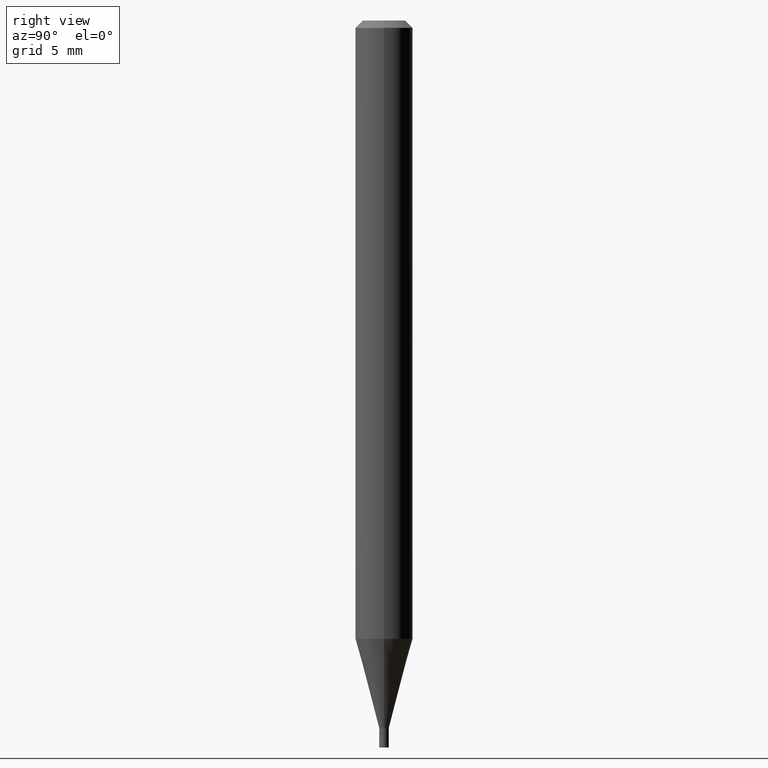
[diagram: clean part render]
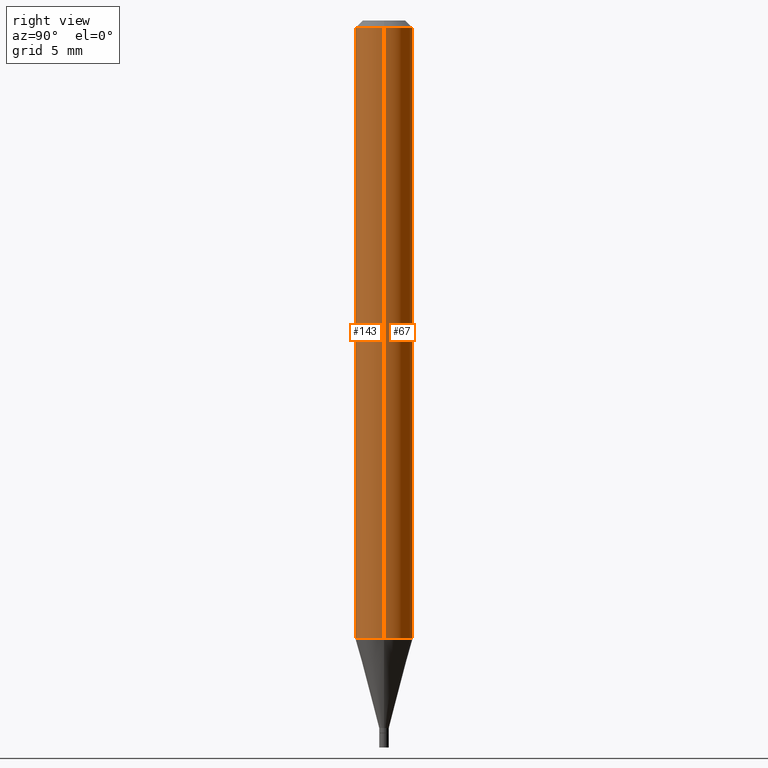
[diagram: same view with one multi-face feature highlighted, each face labeled with its STEP entity id]
A machine part, right view. The highlighted faces form ONE feature: a constant-radius fillet chain: 2 tangent blend faces with common blend radius 1.4999 mm. The faces share edges in the B-rep.
Their STEP definitions:
[1] entity #143 (Cylinder):
#8 = EDGE_CURVE ( 'NONE', #49, #388, #291, .T. ) ;
#9 = CARTESIAN_POINT ( 'NONE',  ( 0.05904999999999999832, -4.855194944695011199E-15, -1.272483100267611356 ) ) ;
#30 = EDGE_LOOP ( 'NONE', ( #96, #272, #270, #66 ) ) ;
#32 = DIRECTION ( 'NONE',  ( -2.445468806185136597E-29, 3.491481338843145583E-15, 1.000000000000000000 ) ) ;
#35 = CARTESIAN_POINT ( 'NONE',  ( 0.000000000000000000, 0.000000000000000000, 0.000000000000000000 ) ) ;
#41 = CARTESIAN_POINT ( 'NONE',  ( -0.05904999999999999832, -4.023275513111297575E-15, -1.272483100267611356 ) ) ;
#49 = VERTEX_POINT ( 'NONE', #41 ) ;
#66 = ORIENTED_EDGE ( 'NONE', *, *, #253, .F. ) ;
#85 = CARTESIAN_POINT ( 'NONE',  ( -0.05904999999999999832, 4.195754854663391478E-16, -2.904631170795521892E-30 ) ) ;
#94 = CIRCLE ( 'NONE', #368, 0.05904999999999999832 ) ;
#96 = ORIENTED_EDGE ( 'NONE', *, *, #230, .F. ) ;
#104 = AXIS2_PLACEMENT_3D ( 'NONE', #317, #32, #435 ) ;
#129 = CARTESIAN_POINT ( 'NONE',  ( 0.05904999999999999832, -4.647161662000212105E-16, -0.01499999999999999944 ) ) ;
#143 = ADVANCED_FACE ( 'NONE', ( #304 ), #446, .T. ) ;
#155 = LINE ( 'NONE', #85, #307 ) ;
#157 = VECTOR ( 'NONE', #234, 39.37007874015748143 ) ;
#177 = VERTEX_POINT ( 'NONE', #129 ) ;
#205 = EDGE_CURVE ( 'NONE', #388, #177, #349, .T. ) ;
#230 = EDGE_CURVE ( 'NONE', #49, #420, #155, .T. ) ;
#234 = DIRECTION ( 'NONE',  ( -2.445468806185136877E-29, 3.491481338843145188E-15, 1.000000000000000000 ) ) ;
#253 = EDGE_CURVE ( 'NONE', #420, #177, #94, .T. ) ;
#255 = DIRECTION ( 'NONE',  ( -2.445468806185136597E-29, 3.491481338843145583E-15, 1.000000000000000000 ) ) ;
#269 = CARTESIAN_POINT ( 'NONE',  ( 0.05904999999999999832, -4.123439461173740327E-16, 2.879382386107500220E-30 ) ) ;
#270 = ORIENTED_EDGE ( 'NONE', *, *, #205, .T. ) ;
#272 = ORIENTED_EDGE ( 'NONE', *, *, #8, .T. ) ;
#277 = DIRECTION ( 'NONE',  ( 1.000000000000000000, -6.982962677686266711E-15, 0.000000000000000000 ) ) ;
#279 = CARTESIAN_POINT ( 'NONE',  ( -0.05904999999999999832, -1.828036123863802383E-15, -0.01499999999999999944 ) ) ;
#291 = CIRCLE ( 'NONE', #104, 0.05904999999999999832 ) ;
#304 = FACE_OUTER_BOUND ( 'NONE', #30, .T. ) ;
#307 = VECTOR ( 'NONE', #310, 39.37007874015748143 ) ;
#310 = DIRECTION ( 'NONE',  ( -2.445468806185136877E-29, 3.491481338843145188E-15, 1.000000000000000000 ) ) ;
#317 = CARTESIAN_POINT ( 'NONE',  ( 3.111817728102196803E-29, -4.442850998577635490E-15, -1.272483100267611356 ) ) ;
#318 = AXIS2_PLACEMENT_3D ( 'NONE', #35, #255, #402 ) ;
#349 = LINE ( 'NONE', #269, #157 ) ;
#368 = AXIS2_PLACEMENT_3D ( 'NONE', #383, #415, #277 ) ;
#383 = CARTESIAN_POINT ( 'NONE',  ( 3.668203209277705088E-31, -5.237222008264718399E-17, -0.01499999999999999944 ) ) ;
#388 = VERTEX_POINT ( 'NONE', #9 ) ;
#402 = DIRECTION ( 'NONE',  ( 1.000000000000000000, -6.982962677686266711E-15, 4.876176775795936353E-29 ) ) ;
#415 = DIRECTION ( 'NONE',  ( -2.445468806185136597E-29, 3.491481338843145583E-15, 1.000000000000000000 ) ) ;
#420 = VERTEX_POINT ( 'NONE', #279 ) ;
#435 = DIRECTION ( 'NONE',  ( 1.000000000000000000, -6.982962677686273021E-15, 0.000000000000000000 ) ) ;
#446 = CYLINDRICAL_SURFACE ( 'NONE', #318, 0.05904999999999999832 ) ;
[2] entity #67 (Cylinder):
#9 = CARTESIAN_POINT ( 'NONE',  ( 0.05904999999999999832, -4.855194944695011199E-15, -1.272483100267611356 ) ) ;
#15 = DIRECTION ( 'NONE',  ( -2.445468806185136597E-29, 3.491481338843145583E-15, 1.000000000000000000 ) ) ;
#41 = CARTESIAN_POINT ( 'NONE',  ( -0.05904999999999999832, -4.023275513111297575E-15, -1.272483100267611356 ) ) ;
#49 = VERTEX_POINT ( 'NONE', #41 ) ;
#59 = AXIS2_PLACEMENT_3D ( 'NONE', #392, #352, #65 ) ;
#62 = ORIENTED_EDGE ( 'NONE', *, *, #356, .T. ) ;
#65 = DIRECTION ( 'NONE',  ( 1.000000000000000000, -6.982962677686266711E-15, 0.000000000000000000 ) ) ;
#67 = ADVANCED_FACE ( 'NONE', ( #407 ), #372, .T. ) ;
#85 = CARTESIAN_POINT ( 'NONE',  ( -0.05904999999999999832, 4.195754854663391478E-16, -2.904631170795521892E-30 ) ) ;
#112 = AXIS2_PLACEMENT_3D ( 'NONE', #313, #15, #266 ) ;
#129 = CARTESIAN_POINT ( 'NONE',  ( 0.05904999999999999832, -4.647161662000212105E-16, -0.01499999999999999944 ) ) ;
#155 = LINE ( 'NONE', #85, #307 ) ;
#157 = VECTOR ( 'NONE', #234, 39.37007874015748143 ) ;
#177 = VERTEX_POINT ( 'NONE', #129 ) ;
#181 = ORIENTED_EDGE ( 'NONE', *, *, #456, .F. ) ;
#183 = DIRECTION ( 'NONE',  ( 1.000000000000000000, -6.982962677686266711E-15, 4.876176775795936353E-29 ) ) ;
#205 = EDGE_CURVE ( 'NONE', #388, #177, #349, .T. ) ;
#207 = AXIS2_PLACEMENT_3D ( 'NONE', #263, #370, #183 ) ;
#230 = EDGE_CURVE ( 'NONE', #49, #420, #155, .T. ) ;
#234 = DIRECTION ( 'NONE',  ( -2.445468806185136877E-29, 3.491481338843145188E-15, 1.000000000000000000 ) ) ;
#263 = CARTESIAN_POINT ( 'NONE',  ( 0.000000000000000000, 0.000000000000000000, 0.000000000000000000 ) ) ;
#266 = DIRECTION ( 'NONE',  ( 1.000000000000000000, -6.982962677686273021E-15, 0.000000000000000000 ) ) ;
#268 = CIRCLE ( 'NONE', #59, 0.05904999999999999832 ) ;
#269 = CARTESIAN_POINT ( 'NONE',  ( 0.05904999999999999832, -4.123439461173740327E-16, 2.879382386107500220E-30 ) ) ;
#279 = CARTESIAN_POINT ( 'NONE',  ( -0.05904999999999999832, -1.828036123863802383E-15, -0.01499999999999999944 ) ) ;
#294 = EDGE_LOOP ( 'NONE', ( #62, #453, #181, #365 ) ) ;
#307 = VECTOR ( 'NONE', #310, 39.37007874015748143 ) ;
#310 = DIRECTION ( 'NONE',  ( -2.445468806185136877E-29, 3.491481338843145188E-15, 1.000000000000000000 ) ) ;
#313 = CARTESIAN_POINT ( 'NONE',  ( 3.111817728102196803E-29, -4.442850998577635490E-15, -1.272483100267611356 ) ) ;
#325 = CIRCLE ( 'NONE', #112, 0.05904999999999999832 ) ;
#349 = LINE ( 'NONE', #269, #157 ) ;
#352 = DIRECTION ( 'NONE',  ( -2.445468806185136597E-29, 3.491481338843145583E-15, 1.000000000000000000 ) ) ;
#356 = EDGE_CURVE ( 'NONE', #388, #49, #325, .T. ) ;
#365 = ORIENTED_EDGE ( 'NONE', *, *, #205, .F. ) ;
#370 = DIRECTION ( 'NONE',  ( -2.445468806185136597E-29, 3.491481338843145583E-15, 1.000000000000000000 ) ) ;
#372 = CYLINDRICAL_SURFACE ( 'NONE', #207, 0.05904999999999999832 ) ;
#388 = VERTEX_POINT ( 'NONE', #9 ) ;
#392 = CARTESIAN_POINT ( 'NONE',  ( 3.668203209277705088E-31, -5.237222008264718399E-17, -0.01499999999999999944 ) ) ;
#407 = FACE_OUTER_BOUND ( 'NONE', #294, .T. ) ;
#420 = VERTEX_POINT ( 'NONE', #279 ) ;
#453 = ORIENTED_EDGE ( 'NONE', *, *, #230, .T. ) ;
#456 = EDGE_CURVE ( 'NONE', #177, #420, #268, .T. ) ;